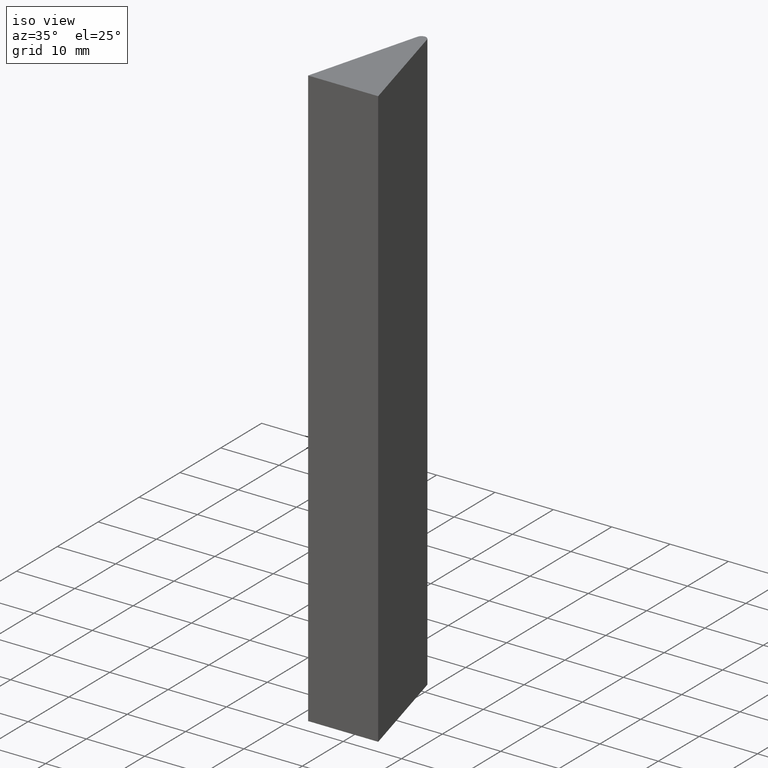
[diagram: clean part render]
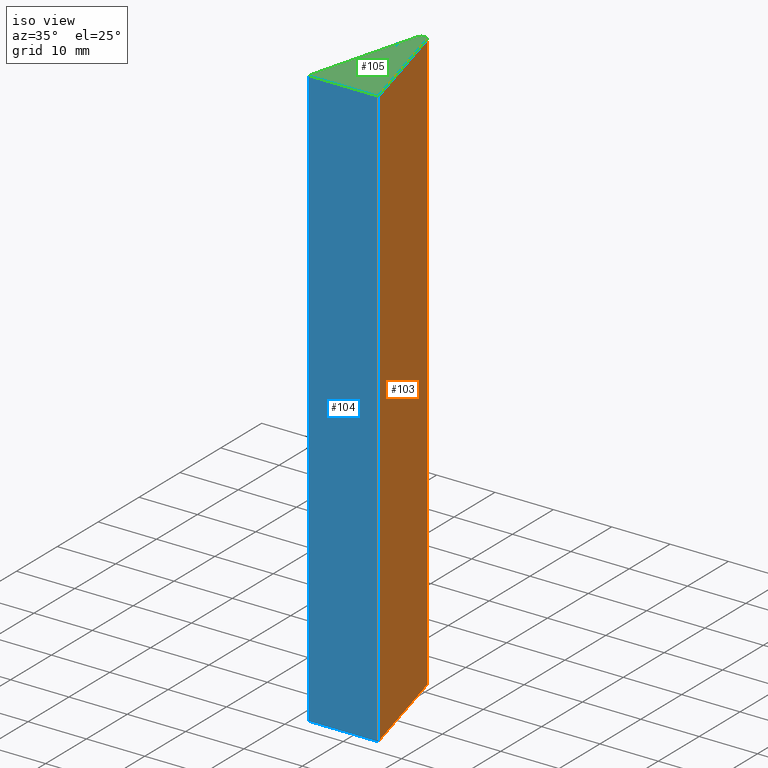
[diagram: same view with three faces highlighted in distinct colors, each labeled with its STEP entity id]
A machine part, iso view with three faces highlighted in distinct colors.
Their STEP definitions:

[orange] entity #103 — the highlighted planar face has unit normal (0.9659, 0.2588, 0).
#20=FACE_OUTER_BOUND('',#26,.T.);
#26=EDGE_LOOP('',(#83,#84,#85,#86));
#31=LINE('',#169,#41);
#37=LINE('',#184,#47);
#38=LINE('',#187,#48);
#39=LINE('',#188,#49);
#41=VECTOR('',#141,10.);
#47=VECTOR('',#155,10.);
#48=VECTOR('',#158,10.);
#49=VECTOR('',#159,10.);
#51=VERTEX_POINT('',#167);
#52=VERTEX_POINT('',#168);
#57=VERTEX_POINT('',#182);
#58=VERTEX_POINT('',#186);
#59=EDGE_CURVE('',#51,#52,#31,.T.);
#67=EDGE_CURVE('',#57,#52,#37,.T.);
#68=EDGE_CURVE('',#57,#58,#38,.T.);
#69=EDGE_CURVE('',#51,#58,#39,.T.);
#83=ORIENTED_EDGE('',*,*,#68,.T.);
#84=ORIENTED_EDGE('',*,*,#69,.F.);
#85=ORIENTED_EDGE('',*,*,#59,.T.);
#86=ORIENTED_EDGE('',*,*,#67,.F.);
#97=PLANE('',#134);
#103=ADVANCED_FACE('',(#20),#97,.T.);
#134=AXIS2_PLACEMENT_3D('',#185,#156,#157);
#141=DIRECTION('',(-0.25881904510252,0.965925826289068,0.));
#155=DIRECTION('',(0.,0.,-1.));
#156=DIRECTION('center_axis',(0.965925826289068,0.25881904510252,0.));
#157=DIRECTION('ref_axis',(0.,0.,-1.));
#158=DIRECTION('',(0.25881904510252,-0.965925826289068,0.));
#159=DIRECTION('',(0.,0.,1.));
#167=CARTESIAN_POINT('',(6.,-1.11022302462516E-15,-50.));
#168=CARTESIAN_POINT('',(0.806923339572389,19.380825944316,-50.));
#169=CARTESIAN_POINT('',(0.806923339572389,19.380825944316,-50.));
#182=CARTESIAN_POINT('',(0.806923339572389,19.380825944316,50.));
#184=CARTESIAN_POINT('',(0.806923339572389,19.380825944316,0.));
#185=CARTESIAN_POINT('Origin',(0.806923339572389,19.380825944316,0.));
#186=CARTESIAN_POINT('',(6.,-1.11022302462516E-15,50.));
#187=CARTESIAN_POINT('',(0.806923339572389,19.380825944316,50.));
#188=CARTESIAN_POINT('',(6.,-1.11022302462516E-15,0.));

[blue] entity #104 — the highlighted planar face has unit normal (0, -1, 0).
#21=FACE_OUTER_BOUND('',#27,.T.);
#27=EDGE_LOOP('',(#87,#88,#89,#90));
#32=LINE('',#171,#42);
#36=LINE('',#180,#46);
#39=LINE('',#188,#49);
#40=LINE('',#190,#50);
#42=VECTOR('',#142,10.);
#46=VECTOR('',#150,10.);
#49=VECTOR('',#159,10.);
#50=VECTOR('',#162,10.);
#51=VERTEX_POINT('',#167);
#53=VERTEX_POINT('',#170);
#55=VERTEX_POINT('',#176);
#58=VERTEX_POINT('',#186);
#60=EDGE_CURVE('',#53,#51,#32,.T.);
#65=EDGE_CURVE('',#55,#53,#36,.T.);
#69=EDGE_CURVE('',#51,#58,#39,.T.);
#70=EDGE_CURVE('',#58,#55,#40,.T.);
#87=ORIENTED_EDGE('',*,*,#70,.T.);
#88=ORIENTED_EDGE('',*,*,#65,.T.);
#89=ORIENTED_EDGE('',*,*,#60,.T.);
#90=ORIENTED_EDGE('',*,*,#69,.T.);
#98=PLANE('',#135);
#104=ADVANCED_FACE('',(#21),#98,.T.);
#135=AXIS2_PLACEMENT_3D('',#189,#160,#161);
#142=DIRECTION('',(1.,0.,0.));
#150=DIRECTION('',(0.,0.,-1.));
#159=DIRECTION('',(0.,0.,1.));
#160=DIRECTION('center_axis',(0.,-1.,0.));
#161=DIRECTION('ref_axis',(0.,0.,-1.));
#162=DIRECTION('',(-1.,0.,0.));
#167=CARTESIAN_POINT('',(6.,-1.11022302462516E-15,-50.));
#170=CARTESIAN_POINT('',(-6.,-1.11022302462516E-15,-50.));
#171=CARTESIAN_POINT('',(6.,-1.11022302462516E-15,-50.));
#176=CARTESIAN_POINT('',(-6.,-1.11022302462516E-15,50.));
#180=CARTESIAN_POINT('',(-6.,-1.11022302462516E-15,0.));
#186=CARTESIAN_POINT('',(6.,-1.11022302462516E-15,50.));
#188=CARTESIAN_POINT('',(6.,-1.11022302462516E-15,0.));
#189=CARTESIAN_POINT('Origin',(6.,-1.11022302462516E-15,0.));
#190=CARTESIAN_POINT('',(6.,-1.11022302462516E-15,50.));

[green] entity #105 — the highlighted planar face has unit normal (0, 0, 1).
#22=FACE_OUTER_BOUND('',#28,.T.);
#28=EDGE_LOOP('',(#91,#92,#93,#94));
#30=CIRCLE('',#133,0.83538851287625);
#34=LINE('',#178,#44);
#38=LINE('',#187,#48);
#40=LINE('',#190,#50);
#44=VECTOR('',#148,10.);
#48=VECTOR('',#158,10.);
#50=VECTOR('',#162,10.);
#55=VERTEX_POINT('',#176);
#56=VERTEX_POINT('',#177);
#57=VERTEX_POINT('',#182);
#58=VERTEX_POINT('',#186);
#63=EDGE_CURVE('',#55,#56,#34,.T.);
#66=EDGE_CURVE('',#56,#57,#30,.T.);
#68=EDGE_CURVE('',#57,#58,#38,.T.);
#70=EDGE_CURVE('',#58,#55,#40,.T.);
#91=ORIENTED_EDGE('',*,*,#63,.F.);
#92=ORIENTED_EDGE('',*,*,#70,.F.);
#93=ORIENTED_EDGE('',*,*,#68,.F.);
#94=ORIENTED_EDGE('',*,*,#66,.F.);
#99=PLANE('',#136);
#105=ADVANCED_FACE('',(#22),#99,.T.);
#133=AXIS2_PLACEMENT_3D('',#183,#153,#154);
#136=AXIS2_PLACEMENT_3D('',#191,#163,#164);
#148=DIRECTION('',(0.25881904510252,0.965925826289068,0.));
#153=DIRECTION('center_axis',(0.,0.,-1.));
#154=DIRECTION('ref_axis',(-0.965925826289069,-0.25881904510252,0.));
#158=DIRECTION('',(0.25881904510252,-0.965925826289068,0.));
#162=DIRECTION('',(-1.,0.,0.));
#163=DIRECTION('center_axis',(0.,0.,1.));
#164=DIRECTION('ref_axis',(1.,0.,0.));
#176=CARTESIAN_POINT('',(-6.,-1.11022302462516E-15,50.));
#177=CARTESIAN_POINT('',(-0.806923339572389,19.380825944316,50.));
#178=CARTESIAN_POINT('',(-6.,-1.11022302462516E-15,50.));
#182=CARTESIAN_POINT('',(0.806923339572389,19.380825944316,50.));
#183=CARTESIAN_POINT('Origin',(0.,19.1646114871238,50.));
#186=CARTESIAN_POINT('',(6.,-1.11022302462516E-15,50.));
#187=CARTESIAN_POINT('',(0.806923339572389,19.380825944316,50.));
#190=CARTESIAN_POINT('',(6.,-1.11022302462516E-15,50.));
#191=CARTESIAN_POINT('Origin',(2.77555756156289E-16,7.95422510156349,50.));